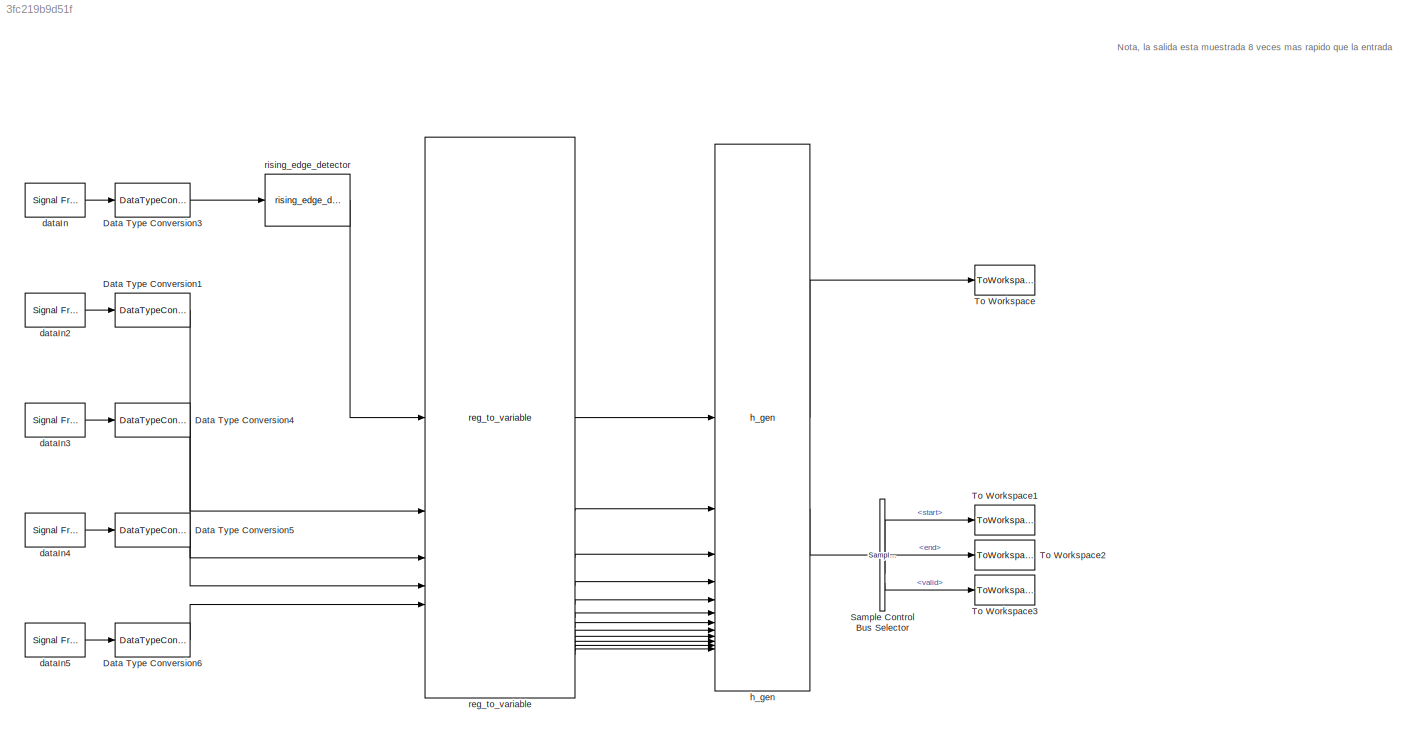
MODEL slx_3fc219b9d51f
KIND model
CONFIG AbsTol = auto
CONFIG EnableMultiTasking = off
CONFIG FixedStep = auto
CONFIG MaxStep = auto
CONFIG MinStep = auto
CONFIG RelTol = 1e-3
CONFIG SampleTimeConstraint = Unconstrained
CONFIG SolverName = FixedStepDiscrete
CONFIG StartTime = 0.0
CONFIG StopTime = stopTime
BLOCK [DataTypeConversion] Data Type Conversion1
  OutDataTypeStr = uint32
  RndMeth = Floor
  SaturateOnIntegerOverflow = off
BLOCK [DataTypeConversion] Data Type Conversion3
  OutDataTypeStr = boolean
  RndMeth = Floor
  SaturateOnIntegerOverflow = off
BLOCK [DataTypeConversion] Data Type Conversion4
  OutDataTypeStr = uint32
  RndMeth = Floor
  SaturateOnIntegerOverflow = off
BLOCK [DataTypeConversion] Data Type Conversion5
  OutDataTypeStr = uint32
  RndMeth = Floor
  SaturateOnIntegerOverflow = off
BLOCK [DataTypeConversion] Data Type Conversion6
  OutDataTypeStr = uint32
  RndMeth = Floor
  SaturateOnIntegerOverflow = off
BLOCK [Reference] Sample Control Bus Selector  REF=whdlutilities/Sample Control
Bus Selector
  SourceBlock = whdlutilities/Sample Control\nBus Selector
BLOCK [ToWorkspace] To Workspace
  MaxDataPoints = inf
  SampleTime = 1/CONST.fs
  Save2DSignal = 2-D array (concatenate along first dimension)
  VariableName = dataOut
BLOCK [ToWorkspace] To Workspace1
  MaxDataPoints = inf
  SampleTime = 1/CONST.fs
  Save2DSignal = 2-D array (concatenate along first dimension)
  VariableName = startOut
BLOCK [ToWorkspace] To Workspace2
  MaxDataPoints = inf
  SampleTime = 1/CONST.fs
  Save2DSignal = 2-D array (concatenate along first dimension)
  VariableName = endOut
BLOCK [ToWorkspace] To Workspace3
  MaxDataPoints = inf
  SampleTime = 1/CONST.fs
  Save2DSignal = 2-D array (concatenate along first dimension)
  VariableName = validOut
BLOCK [Reference] dataIn  REF=dspsrcs4/Signal From
Workspace
  SourceBlock = dspsrcs4/Signal From\nWorkspace
  SourceType = Signal From Workspace
BLOCK [Reference] dataIn2  REF=dspsrcs4/Signal From
Workspace
  SourceBlock = dspsrcs4/Signal From\nWorkspace
  SourceType = Signal From Workspace
BLOCK [Reference] dataIn3  REF=dspsrcs4/Signal From
Workspace
  SourceBlock = dspsrcs4/Signal From\nWorkspace
  SourceType = Signal From Workspace
BLOCK [Reference] dataIn4  REF=dspsrcs4/Signal From
Workspace
  SourceBlock = dspsrcs4/Signal From\nWorkspace
  SourceType = Signal From Workspace
BLOCK [Reference] dataIn5  REF=dspsrcs4/Signal From
Workspace
  SourceBlock = dspsrcs4/Signal From\nWorkspace
  SourceType = Signal From Workspace
BLOCK [Reference] h_gen  REF=HDL_ieee_8021513/h_gen
  SourceBlock = HDL_ieee_8021513/h_gen
  SourceProductName = HDL IEEE 8021513
  SourceType = SubSystem
BLOCK [Reference] reg_to_variable  REF=HDL_ieee_8021513/reg_to_variable
  SourceBlock = HDL_ieee_8021513/reg_to_variable
  SourceProductName = HDL IEEE 8021513
  SourceType = SubSystem
BLOCK [Reference] rising_edge_detector  REF=HDL_ieee_8021513/rising_edge_detector
  SourceBlock = HDL_ieee_8021513/rising_edge_detector
  SourceProductName = HDL IEEE 8021513
  SourceType = SubSystem
ANNOTATION (root): Nota, la salida esta muestrada 8 veces mas rapido que la entrada
LINE Data Type Conversion1:1 -> reg_to_variable:2
LINE Data Type Conversion3:1 -> rising_edge_detector:1
LINE Data Type Conversion4:1 -> reg_to_variable:3
LINE Data Type Conversion5:1 -> reg_to_variable:4
LINE Data Type Conversion6:1 -> reg_to_variable:5
LINE Sample Control Bus Selector:1 -> To Workspace1:1
LINE Sample Control Bus Selector:2 -> To Workspace2:1
LINE Sample Control Bus Selector:3 -> To Workspace3:1
LINE dataIn2:1 -> Data Type Conversion1:1
LINE dataIn3:1 -> Data Type Conversion4:1
LINE dataIn4:1 -> Data Type Conversion5:1
LINE dataIn5:1 -> Data Type Conversion6:1
LINE dataIn:1 -> Data Type Conversion3:1
LINE h_gen:1 -> To Workspace:1
LINE h_gen:2 -> Sample Control Bus Selector:1
LINE reg_to_variable:1 -> h_gen:1
LINE reg_to_variable:10 -> h_gen:10
LINE reg_to_variable:11 -> h_gen:11
LINE reg_to_variable:12 -> h_gen:12
LINE reg_to_variable:2 -> h_gen:2
LINE reg_to_variable:3 -> h_gen:3
LINE reg_to_variable:4 -> h_gen:4
LINE reg_to_variable:5 -> h_gen:5
LINE reg_to_variable:6 -> h_gen:6
LINE reg_to_variable:7 -> h_gen:7
LINE reg_to_variable:8 -> h_gen:8
LINE reg_to_variable:9 -> h_gen:9
LINE rising_edge_detector:1 -> reg_to_variable:1
